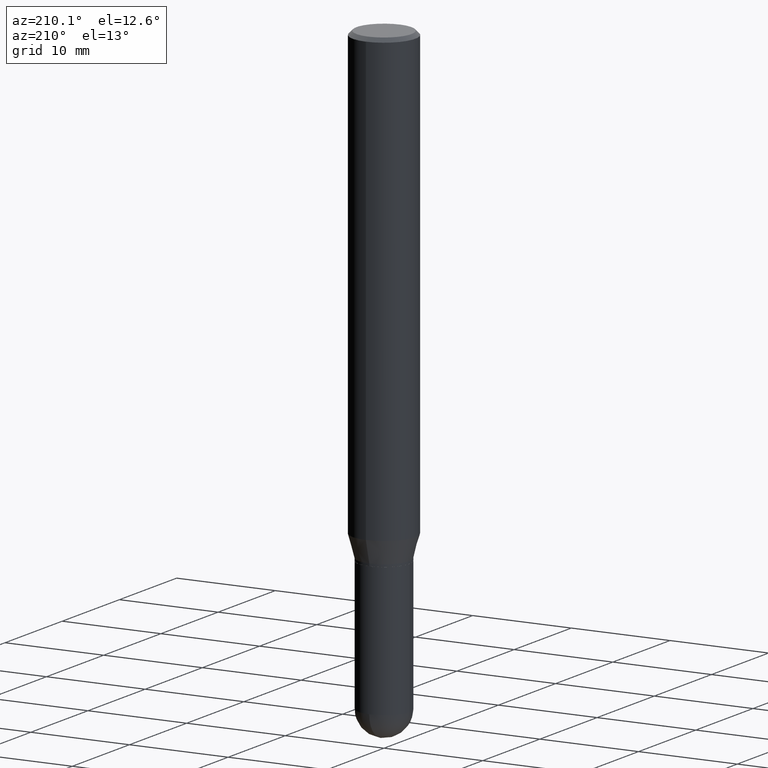
[diagram: clean part render]
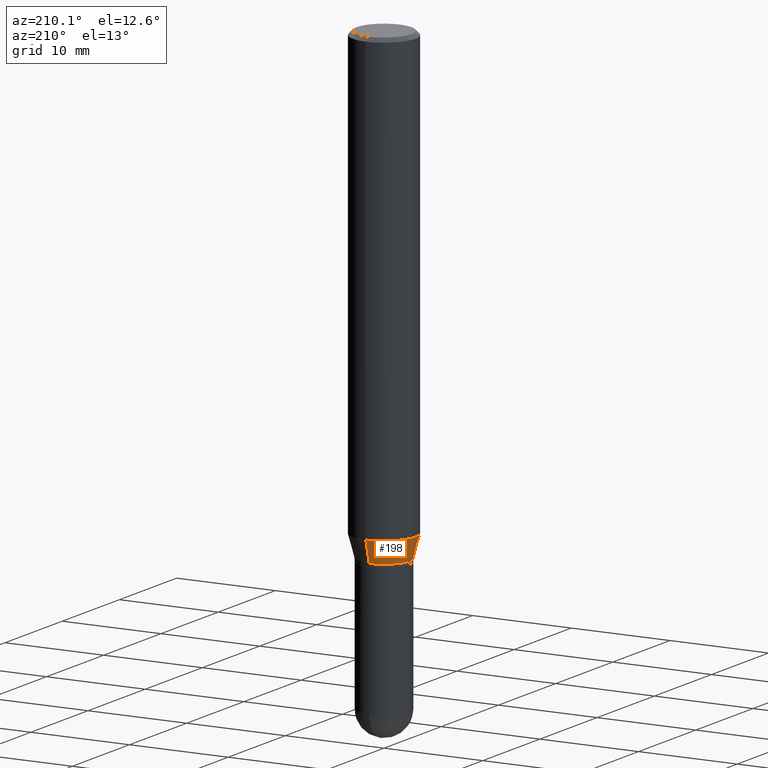
[diagram: same view with one face highlighted and labeled with its STEP entity id]
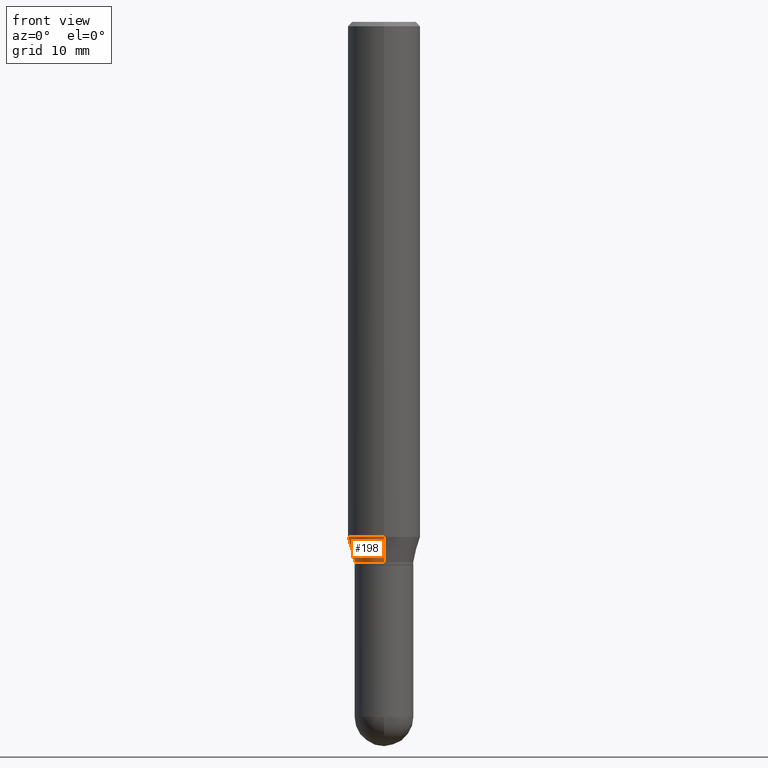
[diagram: same view with one face highlighted and labeled with its STEP entity id]
A machine part, auxiliary view. The second image highlights one B-rep face of the part: STEP entity #198.
A second angle (front view) of the same face is appended — the face is thin or edge-on in the first view.
In plain terms, the highlighted conical surface has half-angle 15 deg.
Its self-contained STEP definition (entity closure, byte-faithful):
#10 = VERTEX_POINT ( 'NONE', #55 ) ;
#33 = AXIS2_PLACEMENT_3D ( 'NONE', #468, #73, #353 ) ;
#55 = CARTESIAN_POINT ( 'NONE',  ( 8.048672839322978639E-16, 0.1015499999999934788, -1.865000000000000213 ) ) ;
#73 = DIRECTION ( 'NONE',  ( -2.445484535067431049E-29, 3.491458814188467583E-15, 1.000000000000000000 ) ) ;
#84 = ORIENTED_EDGE ( 'NONE', *, *, #157, .F. ) ;
#87 = ORIENTED_EDGE ( 'NONE', *, *, #215, .T. ) ;
#92 = VECTOR ( 'NONE', #349, 39.37007874015748143 ) ;
#113 = FACE_OUTER_BOUND ( 'NONE', #255, .T. ) ;
#115 = CARTESIAN_POINT ( 'NONE',  ( 4.560828657900758226E-29, -6.511570688461491770E-15, -1.864999999999999991 ) ) ;
#157 = EDGE_CURVE ( 'NONE', #10, #374, #225, .T. ) ;
#160 = DIRECTION ( 'NONE',  ( -6.982962677686266711E-15, -1.000000000000000000, 2.690150658458161914E-15 ) ) ;
#188 = LINE ( 'NONE', #508, #418 ) ;
#198 = ADVANCED_FACE ( 'NONE', ( #113 ), #425, .T. ) ;
#206 = VERTEX_POINT ( 'NONE', #465 ) ;
#211 = ORIENTED_EDGE ( 'NONE', *, *, #237, .T. ) ;
#215 = EDGE_CURVE ( 'NONE', #10, #493, #240, .T. ) ;
#225 = LINE ( 'NONE', #433, #92 ) ;
#229 = EDGE_CURVE ( 'NONE', #374, #206, #265, .T. ) ;
#234 = DIRECTION ( 'NONE',  ( -1.807323732225330534E-15, -0.2588190451025182415, 0.9659258262890689783 ) ) ;
#237 = EDGE_CURVE ( 'NONE', #493, #206, #188, .T. ) ;
#239 = CARTESIAN_POINT ( 'NONE',  ( 8.881784197001684225E-16, 0.1249999999999937828, -1.777483408562510636 ) ) ;
#240 = CIRCLE ( 'NONE', #499, 0.1015499999999999875 ) ;
#255 = EDGE_LOOP ( 'NONE', ( #84, #87, #211, #440 ) ) ;
#265 = CIRCLE ( 'NONE', #33, 0.1250000000000000000 ) ;
#271 = DIRECTION ( 'NONE',  ( -2.445484535067431049E-29, 3.491458814188467583E-15, 1.000000000000000000 ) ) ;
#349 = DIRECTION ( 'NONE',  ( 1.839019923739600710E-15, 0.2588190451025250138, 0.9659258262890670910 ) ) ;
#353 = DIRECTION ( 'NONE',  ( -6.982962677686265922E-15, -1.000000000000000000, 4.370956789862821150E-15 ) ) ;
#374 = VERTEX_POINT ( 'NONE', #239 ) ;
#381 = DIRECTION ( 'NONE',  ( -6.982962677686266711E-15, -1.000000000000000000, 2.690150658458161914E-15 ) ) ;
#387 = CARTESIAN_POINT ( 'NONE',  ( 4.560828657900758226E-29, -6.511570688461491770E-15, -1.864999999999999991 ) ) ;
#415 = CARTESIAN_POINT ( 'NONE',  ( -7.091198599189946337E-16, -0.1015500000000064962, -1.864999999999999547 ) ) ;
#418 = VECTOR ( 'NONE', #234, 39.37007874015748143 ) ;
#425 = CONICAL_SURFACE ( 'NONE', #487, 0.1015499999999999875, 0.2617993877991502960 ) ;
#433 = CARTESIAN_POINT ( 'NONE',  ( 7.215561481644272066E-16, 0.1015499999999934788, -1.865000000000000213 ) ) ;
#440 = ORIENTED_EDGE ( 'NONE', *, *, #229, .F. ) ;
#465 = CARTESIAN_POINT ( 'NONE',  ( -8.728703347107399515E-16, -0.1250000000000062172, -1.777483408562509526 ) ) ;
#468 = CARTESIAN_POINT ( 'NONE',  ( 4.346808186978562239E-29, -6.206010113899336320E-15, -1.777483408562509970 ) ) ;
#487 = AXIS2_PLACEMENT_3D ( 'NONE', #387, #510, #160 ) ;
#493 = VERTEX_POINT ( 'NONE', #415 ) ;
#499 = AXIS2_PLACEMENT_3D ( 'NONE', #115, #271, #381 ) ;
#508 = CARTESIAN_POINT ( 'NONE',  ( -7.091198599189946337E-16, -0.1015500000000064962, -1.864999999999999547 ) ) ;
#510 = DIRECTION ( 'NONE',  ( -2.445484535067431049E-29, 3.491458814188467583E-15, 1.000000000000000000 ) ) ;